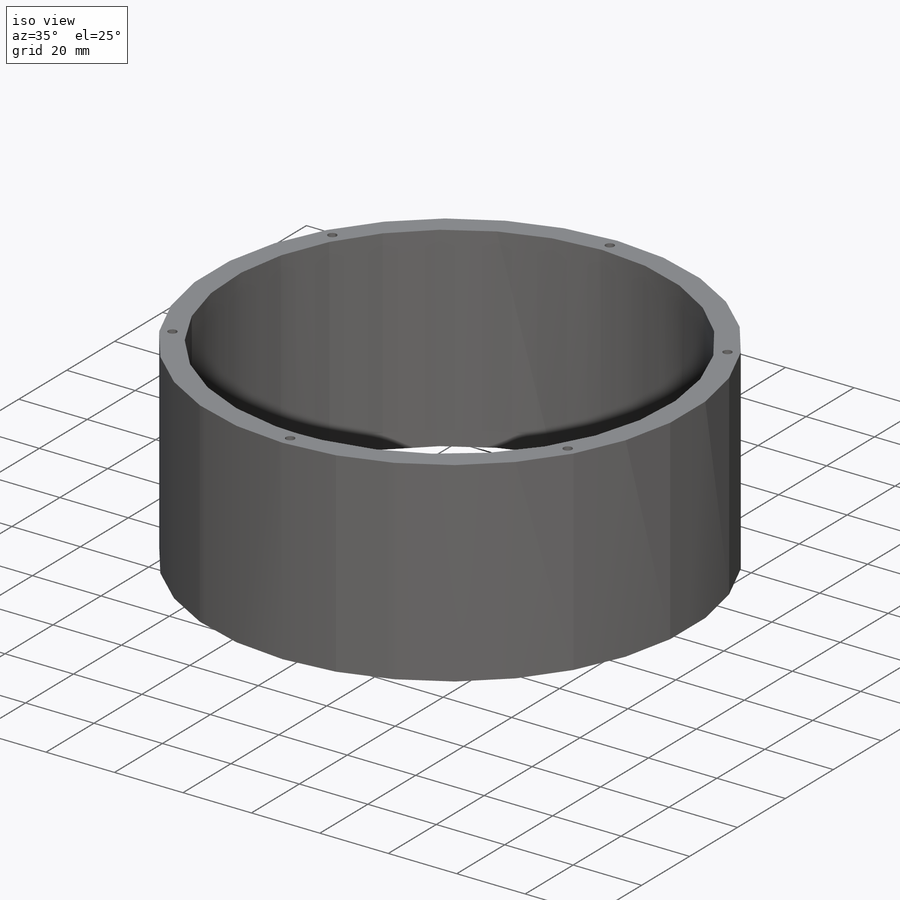
[diagram: iso view]
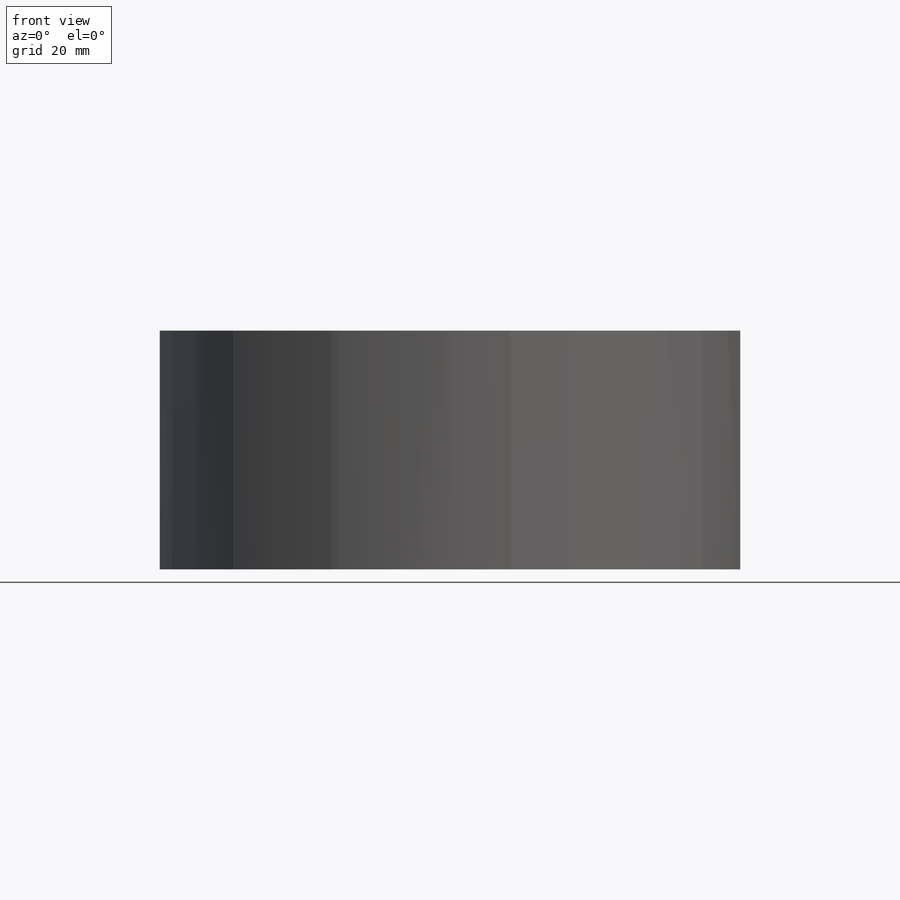
[diagram: front view]
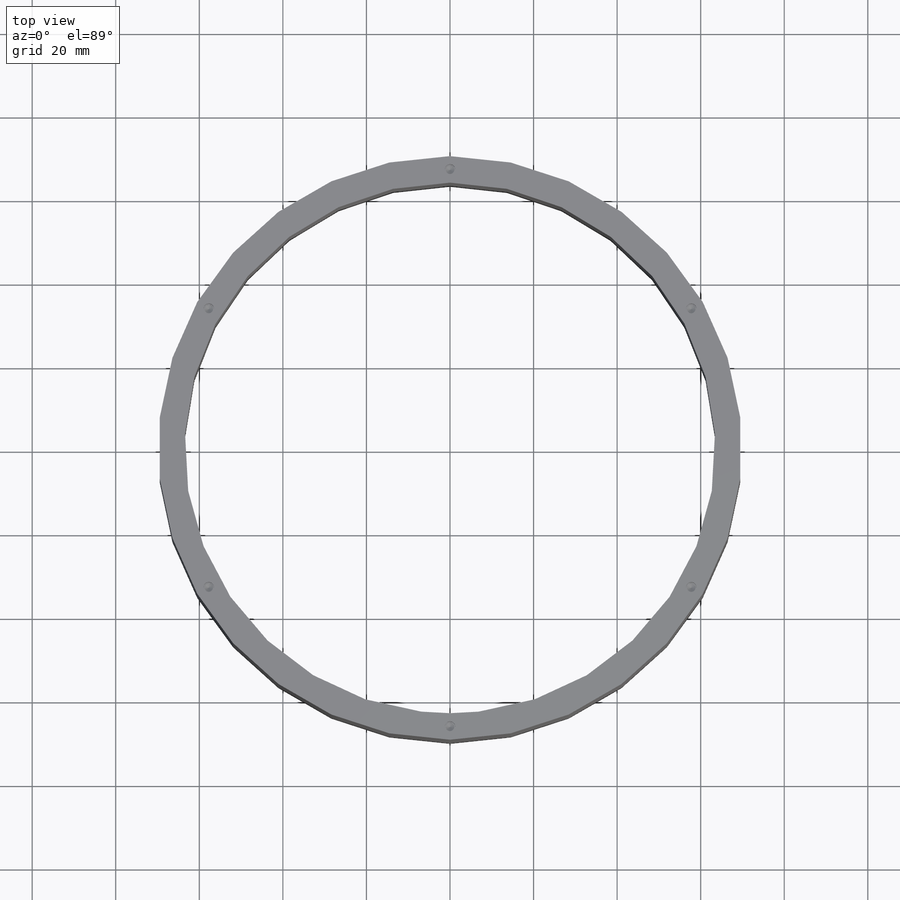
[diagram: top view]
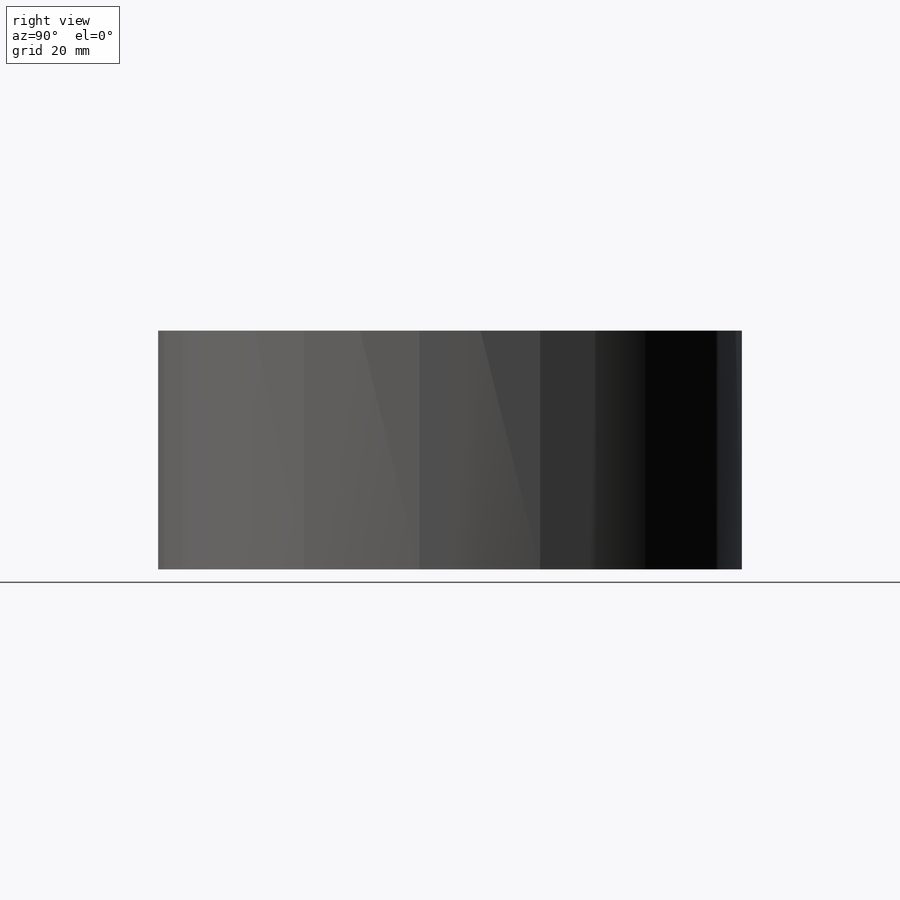
[diagram: right view]
SOLIDWORKS PART (.sldprt)
format: sldprt  version: not decoded by parser v0  size: 233,984 bytes
history: native  units: mm
features: sketch x5, hole x2, pattern_circular x2, material x1, extrude x1 (+11 scaffold rows collapsed)
feature tree (22):
  scaffold x11  (default folders/planes/origin — collapsed)
  material  "Material <not specified>"
  sketch  "Sketch1"  dims[D1=139.7mm D2=127.0mm]
  extrude  "Extrude1"  Depth=57.15mm
  hole  "#3-56 Tapped Hole1"  Diameter=2.0828mm Depth=6.35mm
  sketch  "3DSketch4"  dims[c1.D1=~65.729786mm c1.D2=66.675mm c2.D2=~67.020496mm c2.D3=66.675mm c3.D3=~65.566399mm c3.D4=66.675mm c4.D4=~67.237524mm c4.D13=66.675mm c4.D5=66.675mm c4.D6=~66.192846mm c4.D2=66.675mm c4.D7=~69.760247mm c5.D2=66.675mm c5.D8=~82.746582mm c6.D2=66.675mm c6.D9=~56.005874mm c6.D3=66.675mm c6.D10=~56.768929mm c6.D4=66.675mm c6.D11=~47.982631mm c7.D4=66.675mm c7.D12=66.675mm c7.D2=66.675mm]
  sketch  "Sketch5"  dims[hole-wizard template sketch: 28 standard entries collapsed; hole parameters kept: c8.Tap Drill Dia.=2.0828mm c8.Tap Drill Depth=6.35mm c8.Thread Major Dia.=2.5146mm c8.Thread Depth=5.08mm c8.D5=~14.816244mm c8.Drill Angle=118.0deg]
  pattern_circular  "CirPattern1"  Count=6 Angle=360deg
  hole  "#3-56 Tapped Hole2"  Diameter=2.0828mm Depth=6.4008mm
  sketch  "3DSketch5"  dims[c1.D1=~101.375482mm c1.D2=~101.375482mm c2.D1=66.675mm]
  sketch  "Sketch6"  dims[hole-wizard template sketch: 28 standard entries collapsed; hole parameters kept: c8.Tap Drill Dia.=2.0828mm c8.Tap Drill Depth=6.4008mm c8.Thread Major Dia.=2.5146mm c8.Thread Depth=5.0292mm c8.D5=~14.816244mm c8.Drill Angle=118.0deg]
  pattern_circular  "CirPattern2"  Count=6 Angle=360deg
decode coverage: 10 of 10 modeling features carry decoded parameters
note: ~ marks probable driven/reference dimensions
note: suppression state not decoded; provenance and decode notes live in map.json
